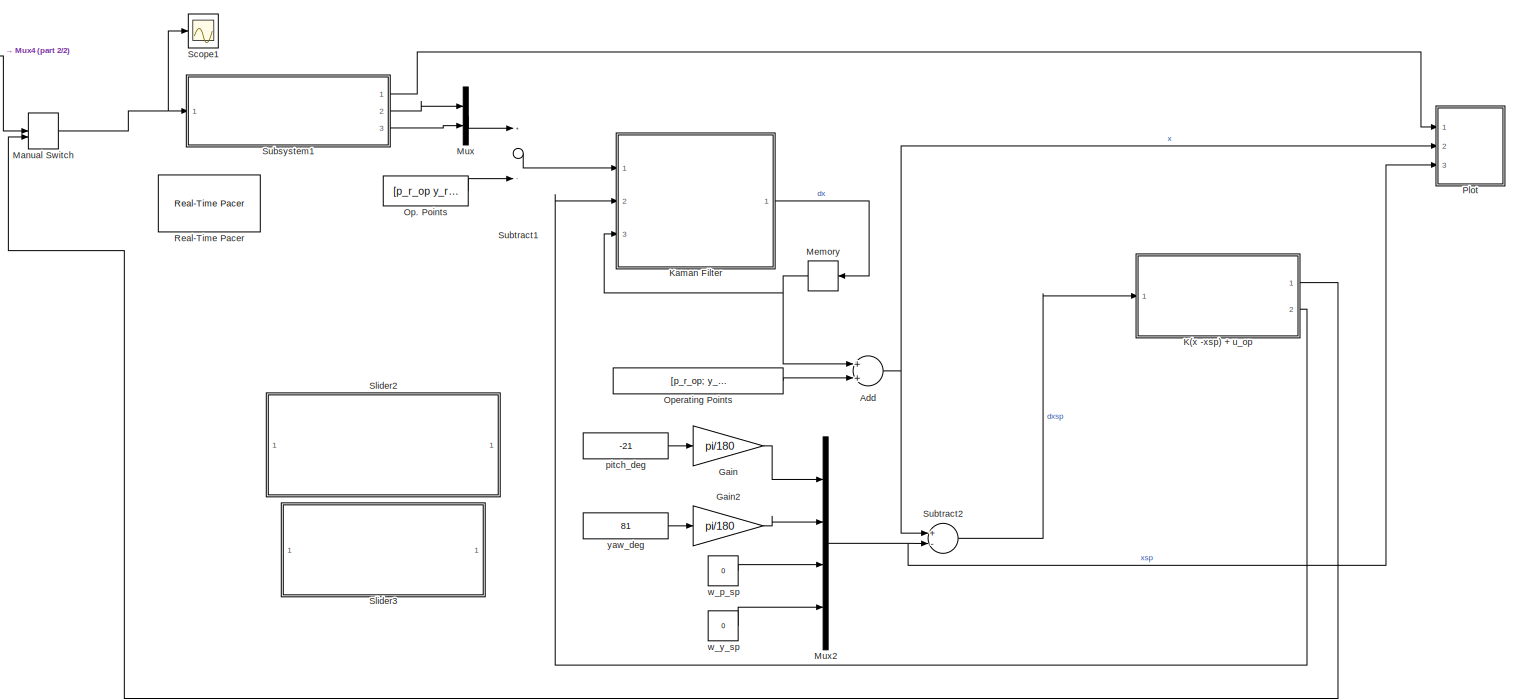
[diagram: root canvas - part 1/2, most of the canvas]
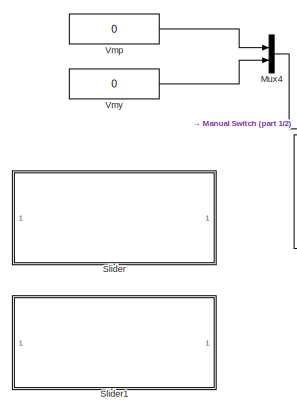
[diagram: root canvas - part 2/2, top left region]
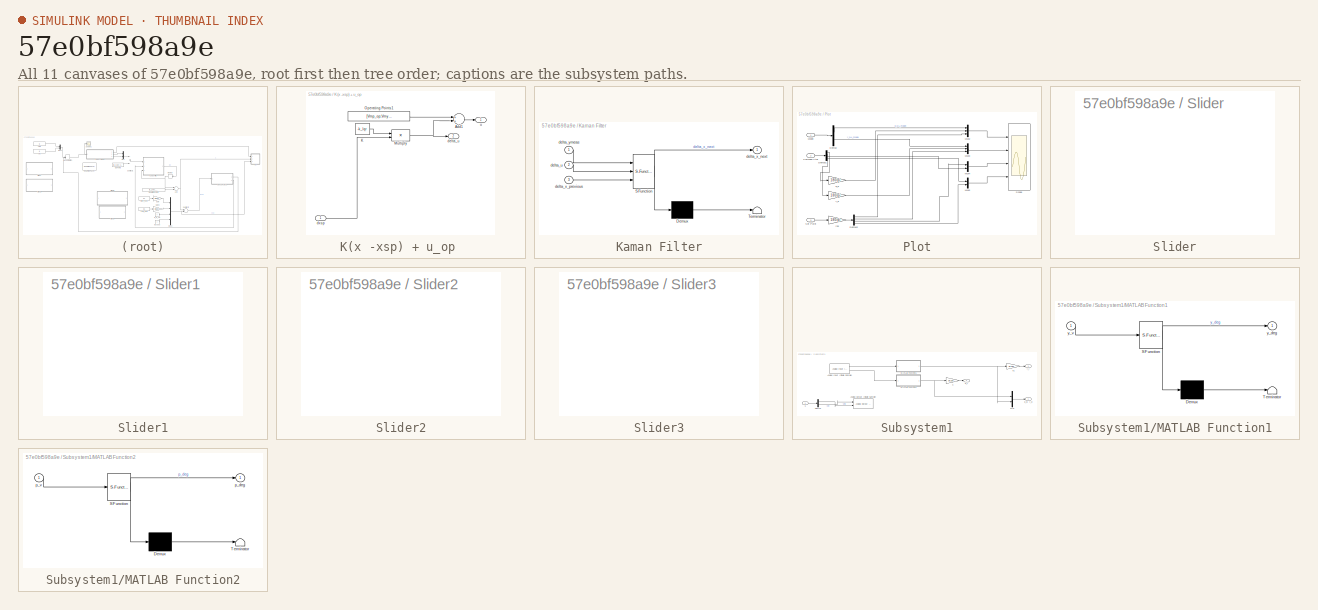
[diagram: thumbnail index - all 11 canvases of the model, root first then tree order]
MODEL slx_57e0bf598a9e
KIND model
CONFIG AbsTol = auto
CONFIG EnableMultiTasking = off
CONFIG FixedStep = 0.2
CONFIG MaxStep = auto
CONFIG MinStep = auto
CONFIG RelTol = 1e-3
CONFIG SampleTimeConstraint = Unconstrained
CONFIG Solver = ode4
CONFIG SolverName = ode4
CONFIG StartTime = 0.0
CONFIG StopTime = inf
BLOCK [Sum] Add
  InputSameDT = off
  OutDataTypeStr = Inherit: Inherit via internal rule
  Ports = [2, 1]
  SaturateOnIntegerOverflow = off
BLOCK [Gain] Gain
  Gain = pi/180
  OutDataTypeStr = Inherit: Inherit via internal rule
  ParamDataTypeStr = Inherit: Inherit via internal rule
  SaturateOnIntegerOverflow = off
BLOCK [Gain] Gain2
  Gain = pi/180
  OutDataTypeStr = Inherit: Inherit via internal rule
  ParamDataTypeStr = Inherit: Inherit via internal rule
  SaturateOnIntegerOverflow = off
BLOCK [SubSystem] K(x -xsp) + u_op 
  Ports = [1, 2]
  RequestExecContextInheritance = off
BLOCK [Sum] K(x -xsp) + u_op /Add1
  InputSameDT = off
  OutDataTypeStr = Inherit: Inherit via internal rule
  Ports = [2, 1]
  SaturateOnIntegerOverflow = off
BLOCK [Constant] K(x -xsp) + u_op /K
  Value = -k_lqr
BLOCK [Product] K(x -xsp) + u_op /Multiply
  InputSameDT = off
  Multiplication = Matrix(*)
  OutDataTypeStr = Inherit: Inherit via internal rule
  Ports = [2, 1]
  RndMeth = Floor
  SaturateOnIntegerOverflow = off
BLOCK [Constant] K(x -xsp) + u_op /Operating Points1
  Value = [Vmp_op;Vmy_op]
BLOCK [Outport] K(x -xsp) + u_op /delta_u
  IconDisplay = Port number
  Port = 2
BLOCK [Inport] K(x -xsp) + u_op /dxsp
  IconDisplay = Port number
BLOCK [Outport] K(x -xsp) + u_op /u
  IconDisplay = Port number
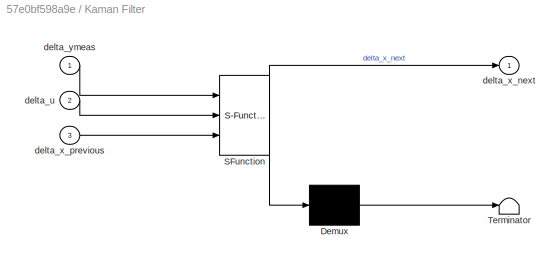
BLOCK [SubSystem] Kaman Filter
  ErrorFcn = Stateflow.Translate.translate
  PermitHierarchicalResolution = ExplicitOnly
  Ports = [3, 1]
  RequestExecContextInheritance = off
  SFBlockType = MATLAB Function
  TreatAsAtomicUnit = on
BLOCK [Demux] Kaman Filter/ Demux 
  Outputs = 1
  Ports = [1, 1]
BLOCK [S-Function] Kaman Filter/ SFunction 
  EnableBusSupport = on
  FunctionName = sf_sfun
  Parameters = Ad,Bd,Cd,K
  PortCounts = [3 2]
  Ports = [3, 2]
  SFcnIsStateOwnerBlock = off
  SFunctionDeploymentMode = off
  Tag = Stateflow S-Function Helicopter_SetPoints_real 3
BLOCK [Terminator] Kaman Filter/ Terminator 
BLOCK [Inport] Kaman Filter/delta_u
  IconDisplay = Port number
  Port = 2
BLOCK [Outport] Kaman Filter/delta_x_next
  IconDisplay = Port number
BLOCK [Inport] Kaman Filter/delta_x_previous
  IconDisplay = Port number
  Port = 3
BLOCK [Inport] Kaman Filter/delta_ymeas
  IconDisplay = Port number
BLOCK [ManualSwitch] Manual Switch
BLOCK [Memory] Memory
  InitialCondition = [0;0;0;0]
BLOCK [Mux] Mux
  DisplayOption = bar
  Inputs = 2
  Ports = [2, 1]
BLOCK [Mux] Mux2
  DisplayOption = bar
  Ports = [4, 1]
BLOCK [Mux] Mux4
  DisplayOption = bar
  Inputs = 2
  Ports = [2, 1]
BLOCK [Constant] Op. Points
  Value = [p_r_op y_r_op]
BLOCK [Constant] Operating Points
  Value = [p_r_op; y_r_op; wp_op; wy_op]
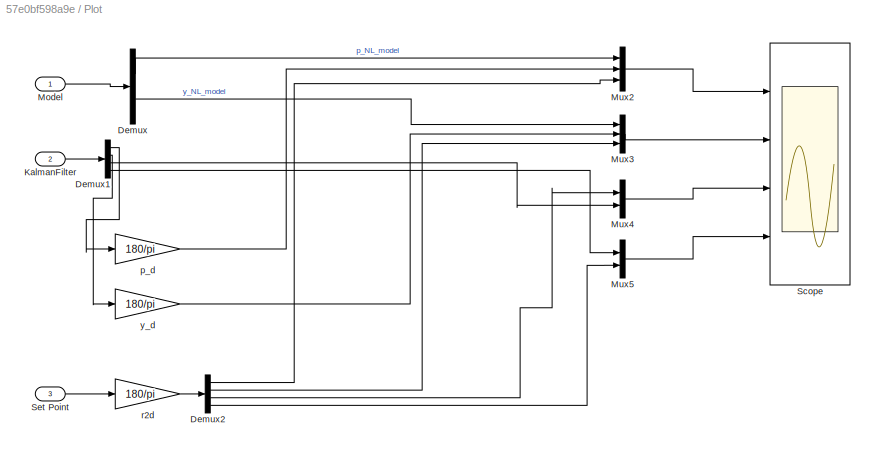
BLOCK [SubSystem] Plot
  Ports = [3]
  RequestExecContextInheritance = off
BLOCK [Demux] Plot/Demux
  DisplayOption = bar
  Outputs = 2
  Ports = [1, 2]
BLOCK [Demux] Plot/Demux1
  DisplayOption = bar
  Ports = [1, 4]
BLOCK [Demux] Plot/Demux2
  DisplayOption = bar
  Ports = [1, 4]
BLOCK [Inport] Plot/KalmanFilter
  IconDisplay = Port number
  Port = 2
BLOCK [Inport] Plot/Model
  IconDisplay = Port number
BLOCK [Mux] Plot/Mux2
  DisplayOption = bar
  Inputs = 3
  Ports = [3, 1]
BLOCK [Mux] Plot/Mux3
  DisplayOption = bar
  Inputs = 3
  Ports = [3, 1]
BLOCK [Mux] Plot/Mux4
  DisplayOption = bar
  Inputs = 2
  Ports = [2, 1]
BLOCK [Mux] Plot/Mux5
  DisplayOption = bar
  Inputs = 2
  Ports = [2, 1]
BLOCK [Scope] Plot/Scope
  Floating = off
  NumInputPorts = 4
  Ports = [4]
  ScopeSpecificationString = Simulink.scopes.TimeScopeBlockCfg('CurrentConfiguration', extmgr.ConfigurationSet(extmgr.Configuration('Core','General UI',true),extmgr.Configuration('Core','Source UI',true),extmgr.Configuration('Sources','WiredSimulink',true,'DataLoggingVariableName','ScopeData1','SampleTime','0.2'),extmgr.Configuration('Visuals','Time Domain',true,'SerializedDisplays',{struct('MinYLimReal','-45','MaxYLimReal','...<+4011ch>
BLOCK [Inport] Plot/Set Point
  IconDisplay = Port number
  Port = 3
BLOCK [Gain] Plot/p_d
  Gain = 180/pi
  OutDataTypeStr = Inherit: Inherit via internal rule
  ParamDataTypeStr = Inherit: Inherit via internal rule
  SaturateOnIntegerOverflow = off
BLOCK [Gain] Plot/r2d
  Gain = 180/pi
  OutDataTypeStr = Inherit: Inherit via internal rule
  ParamDataTypeStr = Inherit: Inherit via internal rule
  SaturateOnIntegerOverflow = off
BLOCK [Gain] Plot/y_d
  Gain = 180/pi
  OutDataTypeStr = Inherit: Inherit via internal rule
  ParamDataTypeStr = Inherit: Inherit via internal rule
  SaturateOnIntegerOverflow = off
BLOCK [Reference] Real-Time Pacer  REF=realtime_pacer_lib/Real-Time Pacer
  Ports = []
  SourceBlock = realtime_pacer_lib/Real-Time Pacer
  SourceType = RealTime_Pacer
BLOCK [Scope] Scope1
  Floating = off
  NumInputPorts = 1
  Ports = [1]
  ScopeSpecificationString = Simulink.scopes.TimeScopeBlockCfg('CurrentConfiguration', extmgr.ConfigurationSet(extmgr.Configuration('Core','General UI',true,'FigureColor',[1 1 1]),extmgr.Configuration('Core','Source UI',true),extmgr.Configuration('Sources','WiredSimulink',true,'DataLoggingVariableName','ScopeData1'),extmgr.Configuration('Visuals','Time Domain',true,'SerializedDisplays',{struct('MinYLimReal','0.00000','MaxYLim...<+1889ch>
BLOCK [SubSystem] Slider
  DialogController = hmiCreateDDGDialog
  IsWebBlock = on
  MaskHideContents = on
  Ports = []
  RequestExecContextInheritance = off
BLOCK [SubSystem] Slider1
  DialogController = hmiCreateDDGDialog
  IsWebBlock = on
  MaskHideContents = on
  Ports = []
  RequestExecContextInheritance = off
BLOCK [SubSystem] Slider2
  DialogController = hmiCreateDDGDialog
  IsWebBlock = on
  MaskHideContents = on
  Ports = []
  RequestExecContextInheritance = off
BLOCK [SubSystem] Slider3
  DialogController = hmiCreateDDGDialog
  IsWebBlock = on
  MaskHideContents = on
  Ports = []
  RequestExecContextInheritance = off
BLOCK [SubSystem] Subsystem1
  Ports = [1, 3]
  RequestExecContextInheritance = off
BLOCK [Reference] Subsystem1/Analog Input (Single Sample)  REF=daqlib/Analog Input
(Single Sample)
  Ports = [0, 2]
  SourceBlock = daqlib/Analog Input\n(Single Sample)
  SourceProductBaseCode = DA
  SourceProductName = Data Acquisition Toolbox
  SourceType = Analog Input (Single Sample)
BLOCK [Reference] Subsystem1/Analog Output (Single Sample)  REF=daqlib/Analog Output
(Single Sample)
  Ports = [2]
  SourceBlock = daqlib/Analog Output\n(Single Sample)
  SourceProductBaseCode = DA
  SourceProductName = Data Acquisition Toolbox
  SourceType = Analog Output (Single Sample)
BLOCK [Demux] Subsystem1/Demux
  DisplayOption = bar
  Outputs = 2
  Ports = [1, 2]
BLOCK [SubSystem] Subsystem1/MATLAB Function1
  ErrorFcn = Stateflow.Translate.translate
  PermitHierarchicalResolution = ExplicitOnly
  Ports = [1, 1]
  RequestExecContextInheritance = off
  SFBlockType = MATLAB Function
  TreatAsAtomicUnit = on
BLOCK [Demux] Subsystem1/MATLAB Function1/ Demux 
  Outputs = 1
  Ports = [1, 1]
BLOCK [S-Function] Subsystem1/MATLAB Function1/ SFunction 
  EnableBusSupport = on
  FunctionName = sf_sfun
  PortCounts = [1 2]
  Ports = [1, 2]
  SFcnIsStateOwnerBlock = off
  SFunctionDeploymentMode = off
  Tag = Stateflow S-Function Helicopter_SetPoints_real 2
BLOCK [Terminator] Subsystem1/MATLAB Function1/ Terminator 
BLOCK [Outport] Subsystem1/MATLAB Function1/y_deg
  IconDisplay = Port number
BLOCK [Inport] Subsystem1/MATLAB Function1/y_v
  IconDisplay = Port number
BLOCK [SubSystem] Subsystem1/MATLAB Function2
  ErrorFcn = Stateflow.Translate.translate
  PermitHierarchicalResolution = ExplicitOnly
  Ports = [1, 1]
  RequestExecContextInheritance = off
  SFBlockType = MATLAB Function
  TreatAsAtomicUnit = on
BLOCK [Demux] Subsystem1/MATLAB Function2/ Demux 
  Outputs = 1
  Ports = [1, 1]
BLOCK [S-Function] Subsystem1/MATLAB Function2/ SFunction 
  EnableBusSupport = on
  FunctionName = sf_sfun
  PortCounts = [1 2]
  Ports = [1, 2]
  SFcnIsStateOwnerBlock = off
  SFunctionDeploymentMode = off
  Tag = Stateflow S-Function Helicopter_SetPoints_real 1
BLOCK [Terminator] Subsystem1/MATLAB Function2/ Terminator 
BLOCK [Outport] Subsystem1/MATLAB Function2/p_deg
  IconDisplay = Port number
BLOCK [Inport] Subsystem1/MATLAB Function2/p_v
  IconDisplay = Port number
BLOCK [Mux] Subsystem1/Mux
  DisplayOption = bar
  Inputs = 2
  Ports = [2, 1]
BLOCK [Gain] Subsystem1/h
  Gain = pi/180
  OutDataTypeStr = Inherit: Inherit via internal rule
  ParamDataTypeStr = Inherit: Inherit via internal rule
  SaturateOnIntegerOverflow = off
BLOCK [Gain] Subsystem1/h1
  Gain = pi/180
  OutDataTypeStr = Inherit: Inherit via internal rule
  ParamDataTypeStr = Inherit: Inherit via internal rule
  SaturateOnIntegerOverflow = off
BLOCK [Outport] Subsystem1/p_d; y_d
  IconDisplay = Port number
  PortDimensions = [2 1]
BLOCK [Outport] Subsystem1/p_r
  IconDisplay = Port number
  Port = 2
  PortDimensions = 1
BLOCK [Inport] Subsystem1/u
  IconDisplay = Port number
BLOCK [Outport] Subsystem1/y_r
  IconDisplay = Port number
  Port = 3
  PortDimensions = 1
BLOCK [Sum] Subtract1
  InputSameDT = off
  Inputs = +-
  OutDataTypeStr = Inherit: Inherit via internal rule
  Ports = [2, 1]
  SaturateOnIntegerOverflow = off
BLOCK [Sum] Subtract2
  InputSameDT = off
  Inputs = +-
  OutDataTypeStr = Inherit: Inherit via internal rule
  Ports = [2, 1]
  SaturateOnIntegerOverflow = off
BLOCK [Constant] Vmp
  Value = 0
BLOCK [Constant] Vmy
  Value = 0
BLOCK [Constant] pitch_deg
  Value = -21
BLOCK [Constant] w_p_sp
  Value = 0
BLOCK [Constant] w_y_sp
  Value = 0
BLOCK [Constant] yaw_deg
  Value = 81
NET Add:1 -> Plot:2, Subtract2:1
LINE Gain2:1 -> Mux2:2
LINE Gain:1 -> Mux2:1
LINE K(x -xsp) + u_op /Add1:1 -> K(x -xsp) + u_op /u:1
LINE K(x -xsp) + u_op /K:1 -> K(x -xsp) + u_op /Multiply:1
NET K(x -xsp) + u_op /Multiply:1 -> K(x -xsp) + u_op /Add1:2, K(x -xsp) + u_op /delta_u:1
LINE K(x -xsp) + u_op /Operating Points1:1 -> K(x -xsp) + u_op /Add1:1
LINE K(x -xsp) + u_op /dxsp:1 -> K(x -xsp) + u_op /Multiply:2
LINE K(x -xsp) + u_op :1 -> Manual Switch:2
LINE K(x -xsp) + u_op :2 -> Kaman Filter:2
LINE Kaman Filter:1 -> Memory:1
NET Manual Switch:1 -> Scope1:1, Subsystem1:1
NET Memory:1 -> Add:1, Kaman Filter:3
NET Mux2:1 -> Plot:3, Subtract2:2
LINE Mux4:1 -> Manual Switch:1
LINE Mux:1 -> Subtract1:1
LINE Op. Points:1 -> Subtract1:2
LINE Operating Points:1 -> Add:2
LINE Plot/Demux1:1 -> Plot/p_d:1
LINE Plot/Demux1:2 -> Plot/y_d:1
LINE Plot/Demux1:3 -> Plot/Mux4:2
LINE Plot/Demux1:4 -> Plot/Mux5:1
LINE Plot/Demux2:1 -> Plot/Mux2:3
LINE Plot/Demux2:2 -> Plot/Mux3:3
LINE Plot/Demux2:3 -> Plot/Mux4:1
LINE Plot/Demux2:4 -> Plot/Mux5:2
LINE Plot/Demux:1 -> Plot/Mux2:1
LINE Plot/Demux:2 -> Plot/Mux3:1
LINE Plot/KalmanFilter:1 -> Plot/Demux1:1
LINE Plot/Model:1 -> Plot/Demux:1
LINE Plot/Mux2:1 -> Plot/Scope:1
LINE Plot/Mux3:1 -> Plot/Scope:2
LINE Plot/Mux4:1 -> Plot/Scope:3
LINE Plot/Mux5:1 -> Plot/Scope:4
LINE Plot/Set Point:1 -> Plot/r2d:1
LINE Plot/p_d:1 -> Plot/Mux2:2
LINE Plot/r2d:1 -> Plot/Demux2:1
LINE Plot/y_d:1 -> Plot/Mux3:2
LINE Subsystem1/Analog Input (Single Sample):1 -> Subsystem1/MATLAB Function1:1
LINE Subsystem1/Analog Input (Single Sample):2 -> Subsystem1/MATLAB Function2:1
LINE Subsystem1/Demux:1 -> Subsystem1/Analog Output (Single Sample):2
LINE Subsystem1/Demux:2 -> Subsystem1/Analog Output (Single Sample):1
NET Subsystem1/MATLAB Function1:1 -> Subsystem1/Mux:2, Subsystem1/h1:1
NET Subsystem1/MATLAB Function2:1 -> Subsystem1/Mux:1, Subsystem1/h:1
LINE Subsystem1/Mux:1 -> Subsystem1/p_d; y_d:1
LINE Subsystem1/h1:1 -> Subsystem1/y_r:1
LINE Subsystem1/h:1 -> Subsystem1/p_r:1
LINE Subsystem1/u:1 -> Subsystem1/Demux:1
LINE Subsystem1:1 -> Plot:1
LINE Subsystem1:2 -> Mux:1
LINE Subsystem1:3 -> Mux:2
LINE Subtract1:1 -> Kaman Filter:1
LINE Subtract2:1 -> K(x -xsp) + u_op :1
LINE Vmp:1 -> Mux4:1
LINE Vmy:1 -> Mux4:2
LINE pitch_deg:1 -> Gain:1
LINE w_p_sp:1 -> Mux2:3
LINE w_y_sp:1 -> Mux2:4
LINE yaw_deg:1 -> Gain2:1
note: NET lines group one-source signal fan-out (src -> all destinations, sorted); 1:1 wires keep LINE
CHART Subsystem1/MATLAB Function2 states=1 transitions=1
  STATE_LABEL 'eML_blk_kernel()'
  STATE_LABEL 'SCRIPT:\nfunction p_deg = p_V_to_deg(p_v)\nerror = 0.12;\np_v = p_v - error;\nV_max = 5;\nV_min = 0;\ndeg_max = 45;\ndeg_min = -45;\nm =(deg_max - deg_min)/(V_max - V_min)\np_deg = m*(p_v -V_min) + deg_min;\n'
CHART Subsystem1/MATLAB Function1 states=1 transitions=1
  STATE_LABEL 'eML_blk_kernel()'
  STATE_LABEL 'SCRIPT:\nfunction y_deg = y_V_to_deg(y_v)\nerror = 0.145;\ny_v = y_v -error;\nV_max = 5;\nV_min = 0;\ndeg_max = 180;\ndeg_min = 0;\nm =(deg_max - deg_min)/(V_max - V_min)\ny_deg = m*(y_v -V_min) + deg_min;\n'
CHART Kaman Filter states=1 transitions=1
  STATE_LABEL 'eML_blk_kernel()'
  STATE_LABEL 'SCRIPT:\nfunction delta_x_next = mykalman(delta_ymeas,delta_u,delta_x_previous, K, Ad, Bd, Cd)\n\ndelta_x_next = Ad*delta_x_previous +Bd*delta_u +K*(delta_ymeas -Cd*delta_x_previous);'
